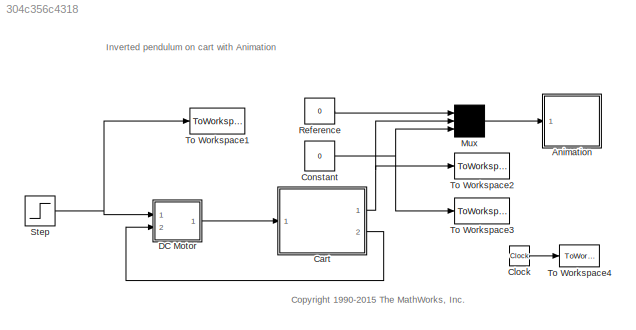
MODEL slx_304c356c4318
KIND model
CONFIG AbsTol = 1e-6
CONFIG EnableMultiTasking = off
CONFIG FixedStep = 0.05
CONFIG MaxStep = 0.02
CONFIG MinStep = auto
CONFIG RelTol = 1e-3
CONFIG SampleTimeConstraint = Unconstrained
CONFIG SolverName = FixedStepAuto
CONFIG StartTime = 0
CONFIG StopTime = 2
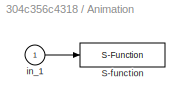
BLOCK [SubSystem] Animation
  Ports = [1]
  RequestExecContextInheritance = off
BLOCK [S-Function] Animation/S-function
  DeleteFcn = pendan([],[],[],'DeleteBlock');
  EnableBusSupport = off
  FunctionName = cartpend_anime
  Parameters = RefBlock
  Ports = [1]
  SFcnIsStateOwnerBlock = off
  SFunctionDeploymentMode = off
BLOCK [Inport] Animation/in_1
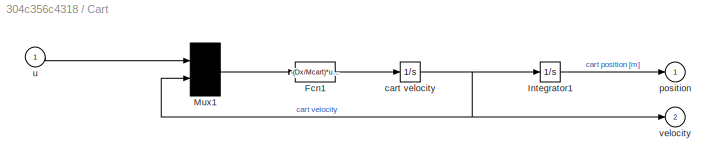
BLOCK [SubSystem] Cart
  Ports = [1, 2]
  RequestExecContextInheritance = off
BLOCK [Fcn] Cart/Fcn1
  Expr = -(Dx/Mcart)*u(2) + (1/Mcart)*u(1)
BLOCK [Integrator] Cart/Integrator1
  InitialCondition = position_init
  Ports = [1, 1]
BLOCK [Mux] Cart/Mux1
  Inputs = 2
  Ports = [2, 1]
BLOCK [Integrator] Cart/cart velocity
  Ports = [1, 1]
BLOCK [Outport] Cart/position
  InitialOutput = 0
  VectorParamsAs1DForOutWhenUnconnected = off
BLOCK [Inport] Cart/u
BLOCK [Outport] Cart/velocity
  InitialOutput = 0
  Port = 2
  VectorParamsAs1DForOutWhenUnconnected = off
BLOCK [Clock] Clock
  Decimation = 1
BLOCK [Constant] Constant
  Value = 0
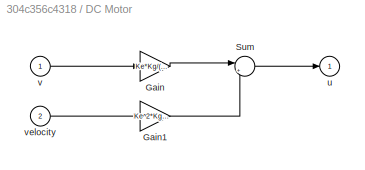
BLOCK [SubSystem] DC Motor
  Ports = [2, 1]
  RequestExecContextInheritance = off
BLOCK [Gain] DC Motor/Gain
  Gain = Ke*Kg/(R*rho)
BLOCK [Gain] DC Motor/Gain1
  Gain = Ke^2*Kg^2/(R*rho^2)
BLOCK [Sum] DC Motor/Sum
  Inputs = |+-
  Ports = [2, 1]
BLOCK [Outport] DC Motor/u
  InitialOutput = 0
  VectorParamsAs1DForOutWhenUnconnected = off
BLOCK [Inport] DC Motor/v
BLOCK [Inport] DC Motor/velocity
  Port = 2
BLOCK [Mux] Mux
  Inputs = 3
  Ports = [3, 1]
BLOCK [Constant] Reference
  Value = 0
BLOCK [Step] Step
  After = E
  SampleTime = 0
  Time = 0
BLOCK [ToWorkspace] To Workspace1
  FixptAsFi = on
  MaxDataPoints = inf
  Ports = [1]
  SampleTime = -1
  Save2DSignal = 2-D array (concatenate along first dimension)
  VariableName = voltage
BLOCK [ToWorkspace] To Workspace2
  FixptAsFi = on
  MaxDataPoints = inf
  Ports = [1]
  SampleTime = -1
  Save2DSignal = 2-D array (concatenate along first dimension)
  VariableName = position
BLOCK [ToWorkspace] To Workspace3
  FixptAsFi = on
  MaxDataPoints = inf
  Ports = [1]
  SampleTime = -1
  Save2DSignal = 2-D array (concatenate along first dimension)
  VariableName = angle
BLOCK [ToWorkspace] To Workspace4
  FixptAsFi = on
  MaxDataPoints = inf
  Ports = [1]
  SampleTime = -1
  Save2DSignal = 2-D array (concatenate along first dimension)
  VariableName = t
ANNOTATION (root): <copyright redacted>
ANNOTATION (root): Inverted pendulum on cart with Animation
LINE Animation/in_1:1 -> Animation/S-function:1
LINE Cart/Fcn1:1 -> Cart/cart velocity:1
LINE Cart/Integrator1:1 -> Cart/position:1
LINE Cart/Mux1:1 -> Cart/Fcn1:1
NET Cart/cart velocity:1 -> Cart/Integrator1:1, Cart/Mux1:2, Cart/velocity:1
LINE Cart/u:1 -> Cart/Mux1:1
NET Cart:1 -> Mux:2, To Workspace2:1
LINE Cart:2 -> DC Motor:2
LINE Clock:1 -> To Workspace4:1
NET Constant:1 -> Mux:3, To Workspace3:1
LINE DC Motor/Gain1:1 -> DC Motor/Sum:2
LINE DC Motor/Gain:1 -> DC Motor/Sum:1
LINE DC Motor/Sum:1 -> DC Motor/u:1
LINE DC Motor/v:1 -> DC Motor/Gain:1
LINE DC Motor/velocity:1 -> DC Motor/Gain1:1
LINE DC Motor:1 -> Cart:1
LINE Mux:1 -> Animation:1
LINE Reference:1 -> Mux:1
NET Step:1 -> DC Motor:1, To Workspace1:1
note: NET lines group one-source signal fan-out (src -> all destinations, sorted); 1:1 wires keep LINE
